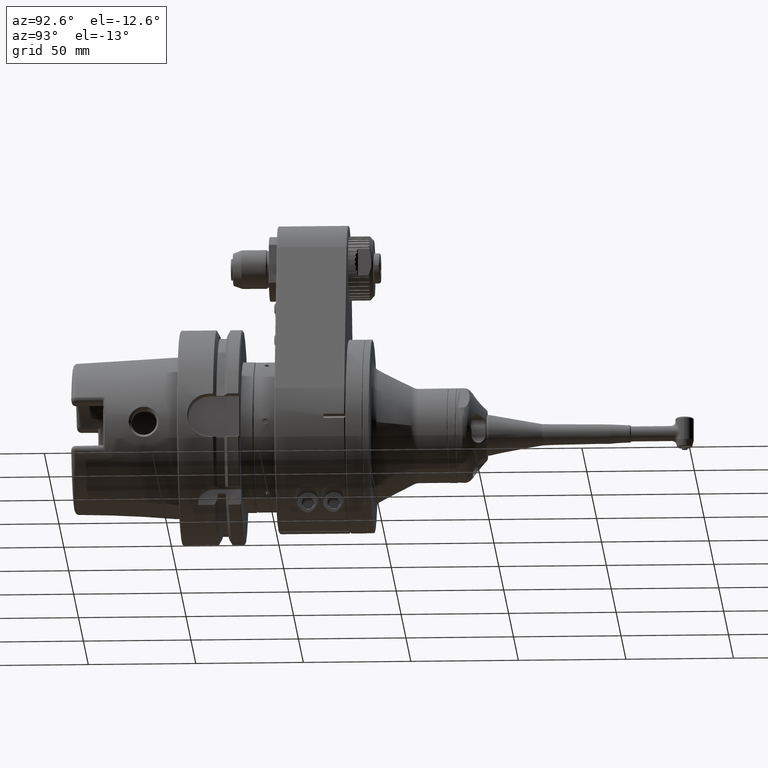
[diagram: clean part render]
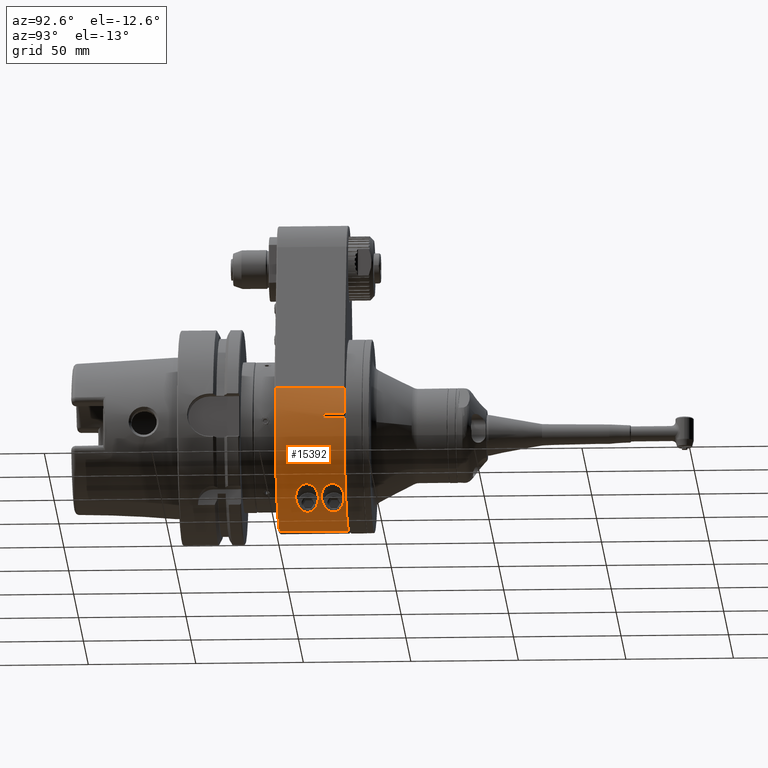
[diagram: same view with one face highlighted and labeled with its STEP entity id]
A machine part, auxiliary view. The second image highlights one B-rep face of the part: STEP entity #15392.
In plain terms, the highlighted cylindrical surface (partial cylindrical patch) has radius 45 mm, axis along (0, -1, 0).
Its self-contained STEP definition (entity closure, byte-faithful):
#184=B_SPLINE_CURVE_WITH_KNOTS('',3,(#29572,#29573,#29574,#29575,#29576,
#29577,#29578,#29579,#29580,#29581,#29582,#29583,#29584,#29585,#29586,#29587,
#29588,#29589,#29590,#29591,#29592,#29593,#29594),.UNSPECIFIED.,.F.,.F.,
(4,2,2,2,2,3,2,2,2,2,4),(-1.14650177911681,-0.782118711859802,-0.41773564460279,
-0.208867822301395,-0.104433911150697,0.,0.104433911150697,0.208867822301395,
0.41773564460279,0.782118711859802,1.14650177911681),.UNSPECIFIED.);
#185=B_SPLINE_CURVE_WITH_KNOTS('',3,(#29595,#29596,#29597,#29598,#29599,
#29600,#29601,#29602,#29603,#29604,#29605,#29606,#29607,#29608,#29609,#29610,
#29611,#29612),.UNSPECIFIED.,.F.,.F.,(4,2,2,2,2,2,2,2,4),(1.14650177911681,
1.44559759523355,1.74469341135029,1.93696179832477,2.12923018529926,2.32149857227375,
2.51376695924824,2.81286277536498,3.11195859148171),.UNSPECIFIED.);
#186=B_SPLINE_CURVE_WITH_KNOTS('',3,(#29614,#29615,#29616,#29617,#29618,
#29619,#29620,#29621,#29622,#29623,#29624,#29625,#29626,#29627,#29628,#29629,
#29630,#29631,#29632,#29633,#29634,#29635,#29636,#29637,#29638,#29639,#29640,
#29641,#29642,#29643,#29644,#29645,#29646,#29647,#29648,#29649,#29650,#29651,
#29652,#29653),.UNSPECIFIED.,.T.,.F.,(4,2,2,2,2,2,2,2,2,2,2,2,2,2,2,2,2,
2,2,4),(-4.23920570456814,-4.13477179341745,-4.03033788226675,-3.82147005996535,
-3.45708699270834,-3.09270392545133,-2.79360810933459,-2.49451229321786,
-2.30224390624337,-2.10997551926888,-2.00257371375224,-1.89517190823559,
-1.68036829720231,-1.40370301984945,-1.12703774249658,-0.807701566480962,
-0.488365390465341,-0.181656939605357,-0.0908284698026786,0.),
 .UNSPECIFIED.);
#853=LINE('',#29425,#1987);
#885=LINE('',#29553,#2019);
#889=LINE('',#29561,#2023);
#890=LINE('',#29568,#2024);
#1987=VECTOR('',#19228,10.);
#2019=VECTOR('',#19354,9.499738216547);
#2023=VECTOR('',#19360,9.499738216547);
#2024=VECTOR('',#19371,31.99993455525);
#2971=CYLINDRICAL_SURFACE('',#16702,45.);
#3165=FACE_BOUND('',#4471,.T.);
#3166=FACE_BOUND('',#4472,.T.);
#3499=FACE_OUTER_BOUND('',#4470,.T.);
#4470=EDGE_LOOP('',(#11363,#11364,#11365,#11366,#11367,#11368,#11369,#11370));
#4471=EDGE_LOOP('',(#11371,#11372));
#4472=EDGE_LOOP('',(#11373));
#5545=CIRCLE('',#16696,45.);
#5547=CIRCLE('',#16701,45.);
#5548=CIRCLE('',#16703,45.);
#5549=CIRCLE('',#16704,45.);
#6492=VERTEX_POINT('',#29420);
#6493=VERTEX_POINT('',#29424);
#6534=VERTEX_POINT('',#29544);
#6535=VERTEX_POINT('',#29548);
#6536=VERTEX_POINT('',#29552);
#6538=VERTEX_POINT('',#29558);
#6539=VERTEX_POINT('',#29560);
#6540=VERTEX_POINT('',#29567);
#6541=VERTEX_POINT('',#29570);
#6542=VERTEX_POINT('',#29571);
#6543=VERTEX_POINT('',#29613);
#8239=EDGE_CURVE('',#6492,#6493,#853,.T.);
#8301=EDGE_CURVE('',#6534,#6535,#5545,.T.);
#8302=EDGE_CURVE('',#6535,#6536,#885,.T.);
#8306=EDGE_CURVE('',#6539,#6538,#889,.T.);
#8308=EDGE_CURVE('',#6539,#6492,#5547,.T.);
#8309=EDGE_CURVE('',#6538,#6536,#5548,.T.);
#8310=EDGE_CURVE('',#6534,#6540,#890,.T.);
#8311=EDGE_CURVE('',#6493,#6540,#5549,.T.);
#8312=EDGE_CURVE('',#6541,#6542,#184,.T.);
#8313=EDGE_CURVE('',#6542,#6541,#185,.T.);
#8314=EDGE_CURVE('',#6543,#6543,#186,.T.);
#11363=ORIENTED_EDGE('',*,*,#8309,.T.);
#11364=ORIENTED_EDGE('',*,*,#8302,.F.);
#11365=ORIENTED_EDGE('',*,*,#8301,.F.);
#11366=ORIENTED_EDGE('',*,*,#8310,.T.);
#11367=ORIENTED_EDGE('',*,*,#8311,.F.);
#11368=ORIENTED_EDGE('',*,*,#8239,.F.);
#11369=ORIENTED_EDGE('',*,*,#8308,.F.);
#11370=ORIENTED_EDGE('',*,*,#8306,.T.);
#11371=ORIENTED_EDGE('',*,*,#8312,.T.);
#11372=ORIENTED_EDGE('',*,*,#8313,.T.);
#11373=ORIENTED_EDGE('',*,*,#8314,.T.);
#15392=ADVANCED_FACE('',(#3499,#3165,#3166),#2971,.T.);
#16696=AXIS2_PLACEMENT_3D('',#29550,#19350,#19351);
#16701=AXIS2_PLACEMENT_3D('',#29564,#19365,#19366);
#16702=AXIS2_PLACEMENT_3D('',#29565,#19367,#19368);
#16703=AXIS2_PLACEMENT_3D('',#29566,#19369,#19370);
#16704=AXIS2_PLACEMENT_3D('',#29569,#19372,#19373);
#19228=DIRECTION('',(0.,-1.,0.));
#19350=DIRECTION('center_axis',(0.,1.,0.));
#19351=DIRECTION('ref_axis',(0.94991775959817,0.,0.31249999999999));
#19354=DIRECTION('',(0.,-1.,0.));
#19360=DIRECTION('',(0.,-1.,0.));
#19365=DIRECTION('center_axis',(0.,1.,0.));
#19366=DIRECTION('ref_axis',(0.999758397003229,0.,-0.0219806192254606));
#19367=DIRECTION('center_axis',(0.,-1.,0.));
#19368=DIRECTION('ref_axis',(1.,0.,0.));
#19369=DIRECTION('center_axis',(0.,-1.,0.));
#19370=DIRECTION('ref_axis',(0.999758397003229,0.,-0.0219806192254506));
#19371=DIRECTION('',(0.,-1.,0.));
#19372=DIRECTION('center_axis',(0.,-1.,0.));
#19373=DIRECTION('ref_axis',(0.0166666666666702,0.,-0.99986110146471));
#29420=CARTESIAN_POINT('',(0.750000000009867,24.4997382175567,-44.9937495654935));
#29424=CARTESIAN_POINT('',(0.750000000009873,-7.49973821755294,-44.9937495654934));
#29425=CARTESIAN_POINT('',(0.75,25.,-44.9937495659119));
#29544=CARTESIAN_POINT('',(42.7462627732489,24.4999186004829,14.0624880714628));
#29548=CARTESIAN_POINT('',(44.98912786515,24.49973821655,0.9891278651453));
#29550=CARTESIAN_POINT('Origin',(-5.839609390487E-13,24.49973821655,2.500222251456E-13));
#29552=CARTESIAN_POINT('',(44.98912786515,15.,0.9891278651453));
#29553=CARTESIAN_POINT('',(44.98912786515,24.49973821655,0.9891278651453));
#29558=CARTESIAN_POINT('',(44.98912786515,15.,-0.9891278651453));
#29560=CARTESIAN_POINT('',(44.98912786515,24.49973821655,-0.9891278651453));
#29561=CARTESIAN_POINT('',(44.98912786515,24.49973821655,-0.9891278651453));
#29564=CARTESIAN_POINT('Origin',(-5.839609390487E-13,24.49973821655,2.500222251456E-13));
#29565=CARTESIAN_POINT('Origin',(0.,25.,0.));
#29566=CARTESIAN_POINT('Origin',(0.,15.,0.));
#29567=CARTESIAN_POINT('',(42.7462627732517,-7.49991860048883,14.0624880714638));
#29568=CARTESIAN_POINT('',(42.74626808292,24.49996727763,14.06248981822));
#29569=CARTESIAN_POINT('Origin',(-1.817991609046E-13,-7.499738216547,-5.067057884389E-13));
#29570=CARTESIAN_POINT('',(28.28427124746,23.75,-35.));
#29571=CARTESIAN_POINT('',(28.2842712474619,13.25,-35.));
#29572=CARTESIAN_POINT('Ctrl Pts',(28.2842712474619,23.75,-35.));
#29573=CARTESIAN_POINT('Ctrl Pts',(27.3395744064252,23.75,-35.7634303342429));
#29574=CARTESIAN_POINT('Ctrl Pts',(26.2844532844903,23.5779808266947,-36.5476501176263));
#29575=CARTESIAN_POINT('Ctrl Pts',(24.1877886998845,22.9015065527178,-37.9678032398534));
#29576=CARTESIAN_POINT('Ctrl Pts',(23.1451580209524,22.4035665818546,-38.6052267894512));
#29577=CARTESIAN_POINT('Ctrl Pts',(21.736027942972,21.3920495185204,-39.4067759231211));
#29578=CARTESIAN_POINT('Ctrl Pts',(21.205197932326,20.9254266192055,-39.6931515616155));
#29579=CARTESIAN_POINT('Ctrl Pts',(20.6004725359246,20.1015239414172,-40.0084016967221));
#29580=CARTESIAN_POINT('Ctrl Pts',(20.4308787949815,19.8064400516065,-40.0948518926029));
#29581=CARTESIAN_POINT('Ctrl Pts',(20.1921836667419,19.1797180497932,-40.2155882536973));
#29582=CARTESIAN_POINT('Ctrl Pts',(20.1230589126007,18.848113037169,-40.25));
#29583=CARTESIAN_POINT('Ctrl Pts',(20.1230589126007,18.5,-40.25));
#29584=CARTESIAN_POINT('Ctrl Pts',(20.1230589126007,18.151886962831,-40.25));
#29585=CARTESIAN_POINT('Ctrl Pts',(20.1921836667419,17.8202819502068,-40.2155882536973));
#29586=CARTESIAN_POINT('Ctrl Pts',(20.4308787949815,17.1935599483935,-40.0948518926029));
#29587=CARTESIAN_POINT('Ctrl Pts',(20.6004725359246,16.8984760585828,-40.0084016967221));
#29588=CARTESIAN_POINT('Ctrl Pts',(21.205197932326,16.0745733807945,-39.6931515616155));
#29589=CARTESIAN_POINT('Ctrl Pts',(21.736027942972,15.6079504814796,-39.4067759231211));
#29590=CARTESIAN_POINT('Ctrl Pts',(23.1451580209524,14.5964334181454,-38.6052267894512));
#29591=CARTESIAN_POINT('Ctrl Pts',(24.1877886998846,14.0984934472822,-37.9678032398534));
#29592=CARTESIAN_POINT('Ctrl Pts',(26.2844532844903,13.4220191733053,-36.5476501176263));
#29593=CARTESIAN_POINT('Ctrl Pts',(27.3395744064252,13.25,-35.7634303342429));
#29594=CARTESIAN_POINT('Ctrl Pts',(28.2842712474619,13.25,-35.));
#29595=CARTESIAN_POINT('Ctrl Pts',(28.2842712474619,13.25,-35.));
#29596=CARTESIAN_POINT('Ctrl Pts',(29.0597048448016,13.25,-34.3733550228128));
#29597=CARTESIAN_POINT('Ctrl Pts',(29.8806786317571,13.3672599799651,-33.6629083638159));
#29598=CARTESIAN_POINT('Ctrl Pts',(31.3794339061692,13.9522512682145,-32.2703807384322));
#29599=CARTESIAN_POINT('Ctrl Pts',(32.0579130177422,14.4202859878695,-31.5891783172573));
#29600=CARTESIAN_POINT('Ctrl Pts',(32.92521356894,15.4696524613906,-30.6785341111395));
#29601=CARTESIAN_POINT('Ctrl Pts',(33.2348069350089,15.9975517288865,-30.3404935517149));
#29602=CARTESIAN_POINT('Ctrl Pts',(33.6535722435166,17.191965161533,-29.8753243939877));
#29603=CARTESIAN_POINT('Ctrl Pts',(33.7629604744608,17.8591053767517,-29.75));
#29604=CARTESIAN_POINT('Ctrl Pts',(33.7629604744608,19.1408946232483,-29.75));
#29605=CARTESIAN_POINT('Ctrl Pts',(33.6535722435166,19.808034838467,-29.8753243939877));
#29606=CARTESIAN_POINT('Ctrl Pts',(33.2348069350089,21.0024482711135,-30.3404935517149));
#29607=CARTESIAN_POINT('Ctrl Pts',(32.92521356894,21.5303475386094,-30.6785341111395));
#29608=CARTESIAN_POINT('Ctrl Pts',(32.0579130177422,22.5797140121305,-31.5891783172573));
#29609=CARTESIAN_POINT('Ctrl Pts',(31.3794339061692,23.0477487317855,-32.2703807384322));
#29610=CARTESIAN_POINT('Ctrl Pts',(29.8806786317571,23.6327400200349,-33.6629083638159));
#29611=CARTESIAN_POINT('Ctrl Pts',(29.0597048448016,23.75,-34.3733550228128));
#29612=CARTESIAN_POINT('Ctrl Pts',(28.2842712474619,23.75,-35.));
#29613=CARTESIAN_POINT('',(28.28427124746,1.25,-35.));
#29614=CARTESIAN_POINT('Ctrl Pts',(20.1230589126007,6.5,-40.25));
#29615=CARTESIAN_POINT('Ctrl Pts',(20.1230589126007,6.15188696283101,-40.25));
#29616=CARTESIAN_POINT('Ctrl Pts',(20.1921836667419,5.82028195020684,-40.2155882536973));
#29617=CARTESIAN_POINT('Ctrl Pts',(20.4308787949815,5.1935599483935,-40.0948518926029));
#29618=CARTESIAN_POINT('Ctrl Pts',(20.6004725359246,4.89847605858281,-40.0084016967221));
#29619=CARTESIAN_POINT('Ctrl Pts',(21.205197932326,4.07457338079454,-39.6931515616155));
#29620=CARTESIAN_POINT('Ctrl Pts',(21.736027942972,3.60795048147965,-39.4067759231211));
#29621=CARTESIAN_POINT('Ctrl Pts',(23.1451580209524,2.59643341814543,-38.6052267894512));
#29622=CARTESIAN_POINT('Ctrl Pts',(24.1877886998845,2.09849344728222,-37.9678032398534));
#29623=CARTESIAN_POINT('Ctrl Pts',(26.2844532844903,1.42201917330533,-36.5476501176263));
#29624=CARTESIAN_POINT('Ctrl Pts',(27.3395744064252,1.25,-35.7634303342429));
#29625=CARTESIAN_POINT('Ctrl Pts',(29.0597048448016,1.25,-34.3733550228128));
#29626=CARTESIAN_POINT('Ctrl Pts',(29.8806786317571,1.36725997996511,-33.6629083638159));
#29627=CARTESIAN_POINT('Ctrl Pts',(31.3794339061692,1.95225126821455,-32.2703807384322));
#29628=CARTESIAN_POINT('Ctrl Pts',(32.0579130177422,2.4202859878695,-31.5891783172573));
#29629=CARTESIAN_POINT('Ctrl Pts',(32.92521356894,3.46965246139063,-30.6785341111395));
#29630=CARTESIAN_POINT('Ctrl Pts',(33.2348069350089,3.99755172888651,-30.3404935517149));
#29631=CARTESIAN_POINT('Ctrl Pts',(33.6535722435166,5.19196516153305,-29.8753243939877));
#29632=CARTESIAN_POINT('Ctrl Pts',(33.7629604744608,5.8591053767517,-29.75));
#29633=CARTESIAN_POINT('Ctrl Pts',(33.7629604744608,6.85800601838881,-29.75));
#29634=CARTESIAN_POINT('Ctrl Pts',(33.7302599443358,7.22120618850676,-29.7872345674845));
#29635=CARTESIAN_POINT('Ctrl Pts',(33.5990174805533,7.92856425585664,-29.9351933925568));
#29636=CARTESIAN_POINT('Ctrl Pts',(33.5004710769903,8.2727316964671,-30.0458680561456));
#29637=CARTESIAN_POINT('Ctrl Pts',(33.1199555105931,9.23942525702287,-30.4665647266752));
#29638=CARTESIAN_POINT('Ctrl Pts',(32.7474159380966,9.79442512708066,-30.8698039246219));
#29639=CARTESIAN_POINT('Ctrl Pts',(31.8224991380334,10.7505436414047,-31.825922438946));
#29640=CARTESIAN_POINT('Ctrl Pts',(31.1742531823703,11.1505831755753,-32.4666621976752));
#29641=CARTESIAN_POINT('Ctrl Pts',(29.7639205151206,11.6496349974932,-33.7642896784261));
#29642=CARTESIAN_POINT('Ctrl Pts',(29.0015515961545,11.75,-34.4203499444887));
#29643=CARTESIAN_POINT('Ctrl Pts',(27.456362642977,11.75,-35.6690511867817));
#29644=CARTESIAN_POINT('Ctrl Pts',(26.5318999397921,11.6168108907382,-36.3637490110355));
#29645=CARTESIAN_POINT('Ctrl Pts',(24.6829448941409,11.0885358325668,-37.6432754436484));
#29646=CARTESIAN_POINT('Ctrl Pts',(23.7582841808269,10.6957938747045,-38.2288273277543));
#29647=CARTESIAN_POINT('Ctrl Pts',(22.158919449635,9.74794603197054,-39.1766751704882));
#29648=CARTESIAN_POINT('Ctrl Pts',(21.2660892189227,9.06120590986003,-39.6628473262856));
#29649=CARTESIAN_POINT('Ctrl Pts',(20.5493321444653,8.01044176566114,-40.0344723485156));
#29650=CARTESIAN_POINT('Ctrl Pts',(20.3939049512118,7.72771406165141,-40.1136263996317));
#29651=CARTESIAN_POINT('Ctrl Pts',(20.1798103695348,7.12427833258905,-40.2217557496493));
#29652=CARTESIAN_POINT('Ctrl Pts',(20.1230589126007,6.80276156600893,-40.25));
#29653=CARTESIAN_POINT('Ctrl Pts',(20.1230589126007,6.5,-40.25));